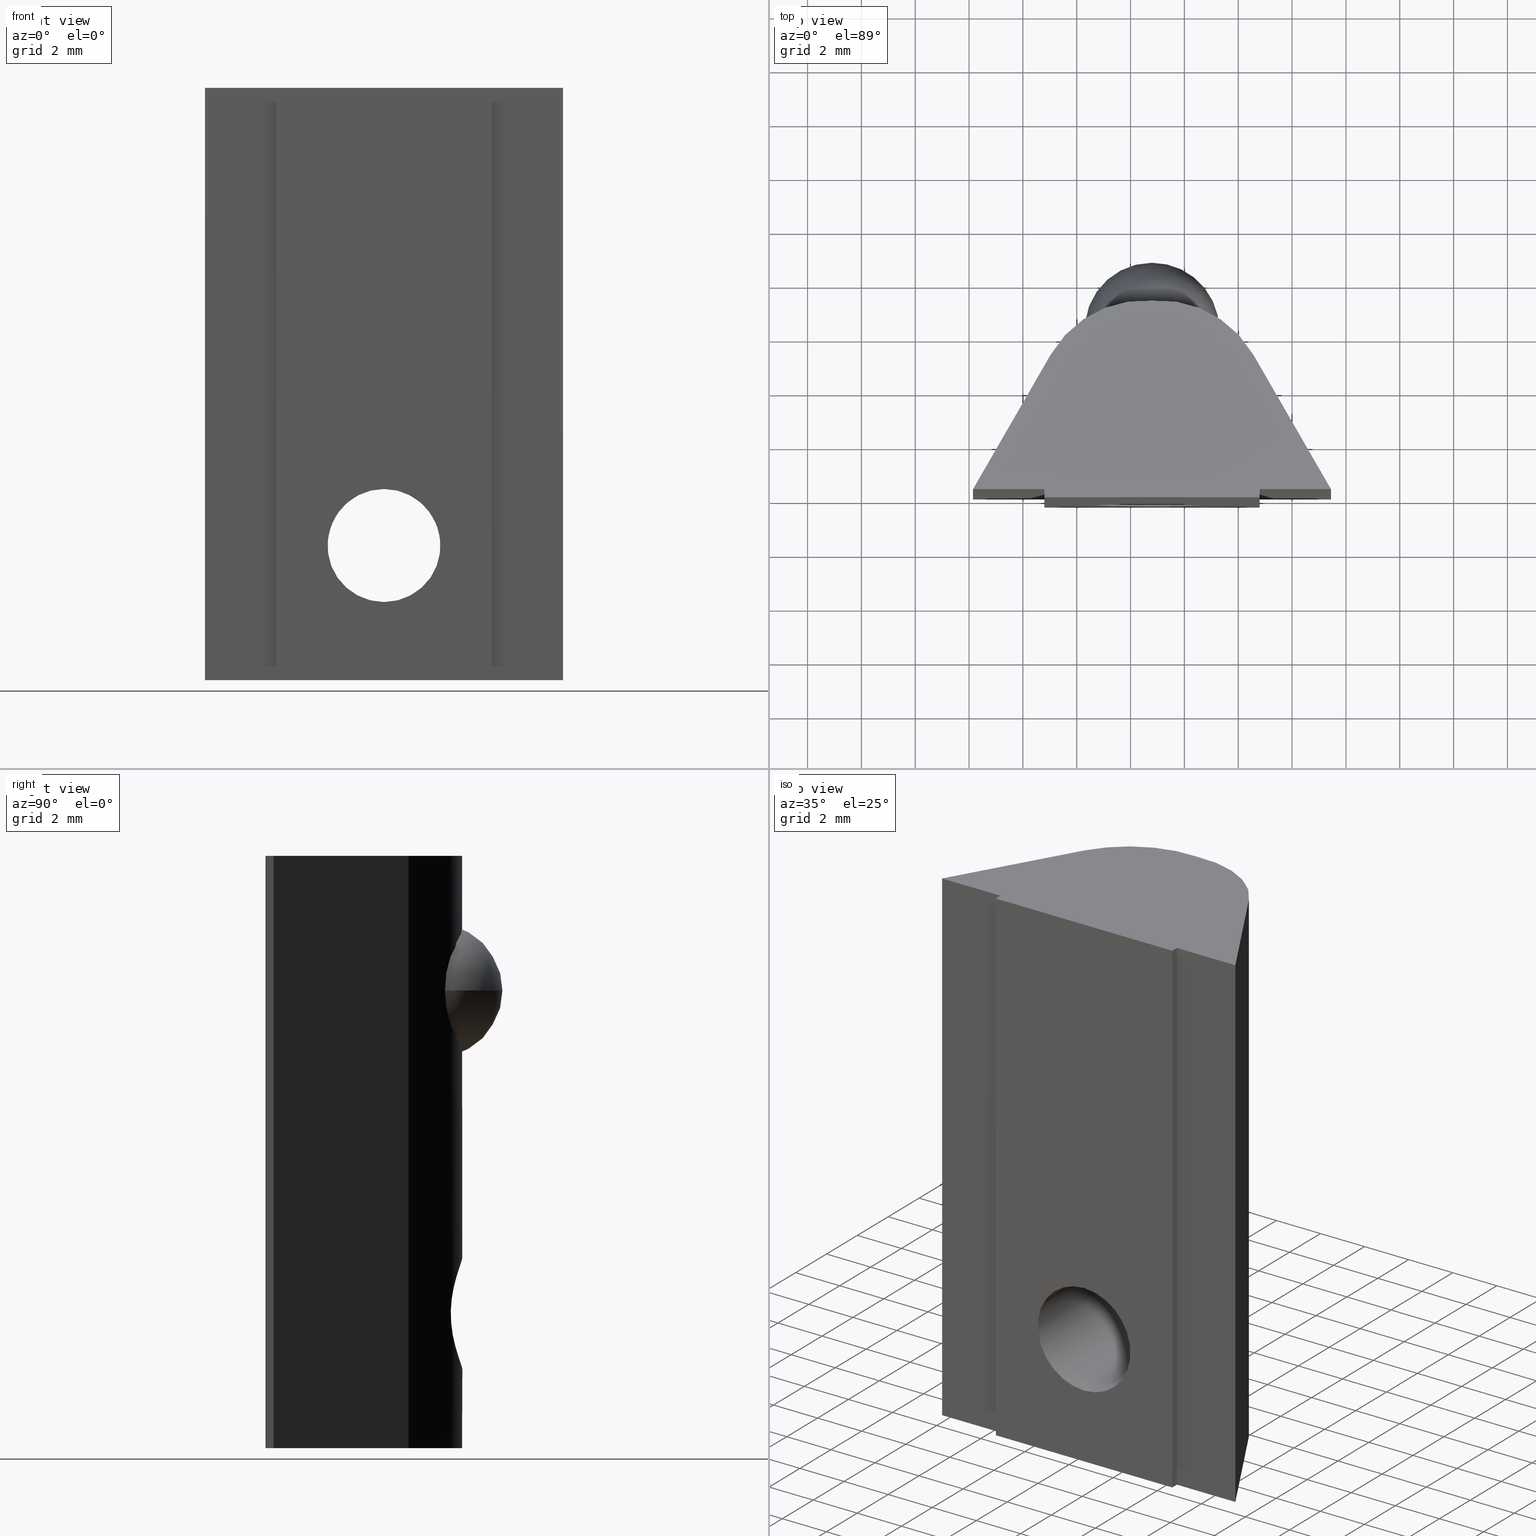
[diagram: canonical four-view strip — front | top / right | iso, engineering-drawing reading convention]
A machine part, canonical four-view strip (front | top / right | iso — engineering-drawing reading convention). The complete STEP part file that produces these views, byte-faithful:
ISO-10303-21;
HEADER;
FILE_DESCRIPTION (( 'STEP AP203' ),
    '1' );
FILE_NAME ('084.302.109.STEP',
    '2018-03-15T09:57:20',
    ( '' ),
    ( '' ),
    'SwSTEP 2.0',
    'SolidWorks 2016',
    '' );
FILE_SCHEMA (( 'CONFIG_CONTROL_DESIGN' ));
ENDSEC;

DATA;
#1 = CARTESIAN_POINT ( 'NONE',  ( 6.650000000000000400, 1.626303258728256700E-016, 0.0000000000000000000 ) ) ;
#2 = ORIENTED_EDGE ( 'NONE', *, *, #406, .T. ) ;
#3 = PERSON_AND_ORGANIZATION ( #574, #540 ) ;
#4 = ADVANCED_FACE ( 'NONE', ( #500 ), #443, .F. ) ;
#5 = CC_DESIGN_DATE_AND_TIME_ASSIGNMENT ( #243, #55, ( #731 ) ) ;
#6 = DIRECTION ( 'NONE',  ( 1.000000000000000000, 0.0000000000000000000, 0.0000000000000000000 ) ) ;
#7 = CC_DESIGN_PERSON_AND_ORGANIZATION_ASSIGNMENT ( #379, #595, ( #486 ) ) ;
#8 = PRODUCT_DEFINITION_SHAPE ( 'NONE', 'NONE',  #552 ) ;
#9 = ORIENTED_EDGE ( 'NONE', *, *, #513, .F. ) ;
#10 = EDGE_LOOP ( 'NONE', ( #658, #544, #724, #570 ) ) ;
#11 = CARTESIAN_POINT ( 'NONE',  ( 3.757047017994986900, 5.010741548740568000, -22.00000000000000000 ) ) ;
#12 = SHAPE_REPRESENTATION_RELATIONSHIP ( 'NONE' , 'NONE' ,  #632, #512 ) ;
#13 = CARTESIAN_POINT ( 'NONE',  ( 6.650000000000000400, 1.626303258728256700E-016, -22.00000000000000000 ) ) ;
#14 = DIRECTION ( 'NONE',  ( 0.8660254037844383700, 0.5000000000000006700, -0.0000000000000000000 ) ) ;
#15 = CARTESIAN_POINT ( 'NONE',  ( 0.0000000000000000000, 7.000000000000000000, -14.89999999999999900 ) ) ;
#16 = VERTEX_POINT ( 'NONE', #183 ) ;
#17 = APPROVAL ( #425, 'NON SPECIFICATO' ) ;
#18 = APPROVAL_PERSON_ORGANIZATION ( #230, #17, #727 ) ;
#19 = PLANE ( 'NONE',  #274 ) ;
#20 = CARTESIAN_POINT ( 'NONE',  ( -1.670093248805526700, 6.767075733069885000, -15.71965499976650800 ) ) ;
#21 = CARTESIAN_POINT ( 'NONE',  ( 0.0000000000000000000, 7.000000000000000000, 0.0000000000000000000 ) ) ;
#22 = CARTESIAN_POINT ( 'NONE',  ( 0.0000000000000000000, -0.2999999999999999300, -16.99999999999999600 ) ) ;
#23 = APPROVAL ( #782, 'NON SPECIFICATO' ) ;
#24 = ORIENTED_EDGE ( 'NONE', *, *, #494, .T. ) ;
#25 = CARTESIAN_POINT ( 'NONE',  ( -1.065268130170007300, 6.943736811957330200, -18.83037812681127600 ) ) ;
#26 = CARTESIAN_POINT ( 'NONE',  ( 0.2778427095453829300, 7.013015978677898900, -14.91386525814885100 ) ) ;
#27 = APPROVAL_PERSON_ORGANIZATION ( #210, #442, #660 ) ;
#28 = ORIENTED_EDGE ( 'NONE', *, *, #202, .T. ) ;
#29 = CARTESIAN_POINT ( 'NONE',  ( -2.100340295472199200, 6.579119870751840800, -17.27598671402250500 ) ) ;
#30 = PERSON_AND_ORGANIZATION ( #574, #540 ) ;
#31 = CARTESIAN_POINT ( 'NONE',  ( 1.065483002489959100, 6.943797238216981200, -15.16950234633369700 ) ) ;
#32 = PERSON_AND_ORGANIZATION ( #574, #540 ) ;
#33 = PERSON_AND_ORGANIZATION_ROLE ( 'design_owner' ) ;
#34 = ORIENTED_EDGE ( 'NONE', *, *, #608, .T. ) ;
#35 = DIRECTION ( 'NONE',  ( 0.0000000000000000000, 0.0000000000000000000, 1.000000000000000000 ) ) ;
#36 = DIRECTION ( 'NONE',  ( 0.0000000000000000000, 0.0000000000000000000, 1.000000000000000000 ) ) ;
#37 = CIRCLE ( 'NONE', #281, 2.099999999999997900 ) ;
#38 = APPROVAL_PERSON_ORGANIZATION ( #420, #502, #357 ) ;
#39 = CC_DESIGN_PERSON_AND_ORGANIZATION_ASSIGNMENT ( #381, #527, ( #765 ) ) ;
#40 = DIRECTION ( 'NONE',  ( 1.000000000000000000, 1.029617123758820600E-016, 0.0000000000000000000 ) ) ;
#41 = ORIENTED_EDGE ( 'NONE', *, *, #118, .F. ) ;
#42 = AXIS2_PLACEMENT_3D ( 'NONE', #22, #204, #224 ) ;
#43 = ORIENTED_EDGE ( 'NONE', *, *, #616, .F. ) ;
#44 = APPROVAL_ROLE ( '' ) ;
#45 = CC_DESIGN_SECURITY_CLASSIFICATION ( #731, ( #468 ) ) ;
#46 = CARTESIAN_POINT ( 'NONE',  ( -6.650000000000000400, 1.626303258728256700E-016, 0.0000000000000000000 ) ) ;
#47 = PERSON_AND_ORGANIZATION_ROLE ( 'classification_officer' ) ;
#48 = DATE_AND_TIME ( #195, #461 ) ;
#49 = LINE ( 'NONE', #799, #267 ) ;
#50 = APPROVAL ( #788, 'NON SPECIFICATO' ) ;
#51 = SECURITY_CLASSIFICATION_LEVEL ( 'unclassified' ) ;
#52 = ORIENTED_EDGE ( 'NONE', *, *, #163, .T. ) ;
#53 = APPROVAL_PERSON_ORGANIZATION ( #708, #23, #539 ) ;
#54 = CC_DESIGN_APPROVAL ( #536, ( #486 ) ) ;
#55 = DATE_TIME_ROLE ( 'classification_date' ) ;
#56 = EDGE_LOOP ( 'NONE', ( #98, #696, #521, #128, #242, #433 ) ) ;
#57 = EDGE_CURVE ( 'NONE', #597, #146, #70, .T. ) ;
#58 = ADVANCED_FACE ( 'NONE', ( #158 ), #68, .T. ) ;
#59 = CC_DESIGN_APPROVAL ( #50, ( #731 ) ) ;
#60 = ORIENTED_EDGE ( 'NONE', *, *, #518, .T. ) ;
#61 = ORIENTED_EDGE ( 'NONE', *, *, #406, .F. ) ;
#62 = APPROVAL ( #603, 'NON SPECIFICATO' ) ;
#63 = LINE ( 'NONE', #192, #589 ) ;
#64 = DATE_AND_TIME ( #253, #116 ) ;
#65 = ORIENTED_EDGE ( 'NONE', *, *, #489, .T. ) ;
#66 = DIRECTION ( 'NONE',  ( 0.0000000000000000000, 0.0000000000000000000, 1.000000000000000000 ) ) ;
#67 = AXIS2_PLACEMENT_3D ( 'NONE', #643, #268, #71 ) ;
#68 = PLANE ( 'NONE',  #178 ) ;
#69 = PRODUCT_RELATED_PRODUCT_CATEGORY ( 'detail', '', ( #792 ) ) ;
#70 = LINE ( 'NONE', #618, #167 ) ;
#71 = DIRECTION ( 'NONE',  ( 1.000000000000000000, 0.0000000000000000000, 0.0000000000000000000 ) ) ;
#72 = PRODUCT_DEFINITION_SHAPE ( 'NONE', 'NONE',  #811 ) ;
#73 = DIRECTION ( 'NONE',  ( 1.000000000000000000, 0.0000000000000000000, 0.0000000000000000000 ) ) ;
#74 = DIRECTION ( 'NONE',  ( 0.0000000000000000000, 0.0000000000000000000, 1.000000000000000000 ) ) ;
#75 = SECURITY_CLASSIFICATION ( '', '', #409 ) ;
#76 = DIRECTION ( 'NONE',  ( 0.0000000000000000000, 0.0000000000000000000, -1.000000000000000000 ) ) ;
#77 = LINE ( 'NONE', #188, #285 ) ;
#78 = AXIS2_PLACEMENT_3D ( 'NONE', #84, #462, #641 ) ;
#79 = CARTESIAN_POINT ( 'NONE',  ( -6.650000000000000400, 1.626303258728256700E-016, -22.00000000000000000 ) ) ;
#80 = DIRECTION ( 'NONE',  ( 1.000000000000000000, 0.0000000000000000000, 0.0000000000000000000 ) ) ;
#81 = CC_DESIGN_DATE_AND_TIME_ASSIGNMENT ( #383, #427, ( #132 ) ) ;
#82 = PERSON_AND_ORGANIZATION ( #574, #540 ) ;
#83 = DIRECTION ( 'NONE',  ( -1.000000000000000000, 0.0000000000000000000, 0.0000000000000000000 ) ) ;
#84 = CARTESIAN_POINT ( 'NONE',  ( 0.2929454028572334200, 3.010741548740566700, -22.00000000000000000 ) ) ;
#85 = CALENDAR_DATE ( 2018, 15, 3 ) ;
#86 = CARTESIAN_POINT ( 'NONE',  ( -0.6841240291442689500, 6.993631784759940300, -15.00978186247948900 ) ) ;
#87 = CC_DESIGN_PERSON_AND_ORGANIZATION_ASSIGNMENT ( #420, #665, ( #602 ) ) ;
#88 = ORIENTED_EDGE ( 'NONE', *, *, #57, .F. ) ;
#89 = CARTESIAN_POINT ( 'NONE',  ( -5.204035208279566200, 0.1420194118098121200, 16.33826636980840900 ) ) ;
#90 = VECTOR ( 'NONE', #314, 1000.000000000000000 ) ;
#91 = LOCAL_TIME ( 10, 57, 20.00000000000000000, #591 ) ;
#92 = LINE ( 'NONE', #13, #384 ) ;
#93 = AXIS2_PLACEMENT_3D ( 'NONE', #331, #723, #533 ) ;
#94 = APPLICATION_CONTEXT ( 'configuration controlled 3d designs of mechanical parts and assemblies' ) ;
#95 = MANIFOLD_SOLID_BREP ( 'Foro filettato M5-2', #223 ) ;
#96 = EDGE_CURVE ( 'NONE', #146, #407, #698, .T. ) ;
#97 = VERTEX_POINT ( 'NONE', #318 ) ;
#98 = ORIENTED_EDGE ( 'NONE', *, *, #96, .F. ) ;
#99 = FACE_OUTER_BOUND ( 'NONE', #745, .T. ) ;
#100 = DIRECTION ( 'NONE',  ( 1.029617123758820600E-016, -1.000000000000000000, 0.0000000000000000000 ) ) ;
#101 = PERSON_AND_ORGANIZATION ( #574, #540 ) ;
#102 = APPROVAL_PERSON_ORGANIZATION ( #233, #536, #670 ) ;
#103 = DATE_TIME_ROLE ( 'classification_date' ) ;
#104 = DIRECTION ( 'NONE',  ( -0.0000000000000000000, 1.000000000000000000, -0.0000000000000000000 ) ) ;
#105 = SECURITY_CLASSIFICATION_LEVEL ( 'unclassified' ) ;
#106 = AXIS2_PLACEMENT_3D ( 'NONE', #453, #191, #83 ) ;
#107 = VERTEX_POINT ( 'NONE', #255 ) ;
#108 = VECTOR ( 'NONE', #576, 1000.000000000000000 ) ;
#109 = DATE_TIME_ROLE ( 'classification_date' ) ;
#110 = ORGANIZATION ( 'NAUO-ORG1', 'UNSPECIFIED', 'UNSPECIFIED' ) ;
#111 = ORIENTED_EDGE ( 'NONE', *, *, #463, .F. ) ;
#112 = PRODUCT_DEFINITION_SHAPE ( 'NONE', 'NONE',  #701 ) ;
#113 = EDGE_LOOP ( 'NONE', ( #505, #583, #358, #186 ) ) ;
#114 = APPROVAL ( #171, 'NON SPECIFICATO' ) ;
#115 = VECTOR ( 'NONE', #547, 1000.000000000000000 ) ;
#116 = LOCAL_TIME ( 10, 57, 20.00000000000000000, #531 ) ;
#117 = DATE_AND_TIME ( #510, #400 ) ;
#118 = EDGE_CURVE ( 'NONE', #16, #407, #430, .T. ) ;
#119 = COORDINATED_UNIVERSAL_TIME_OFFSET ( 1, 0, .AHEAD. ) ;
#120 = CC_DESIGN_PERSON_AND_ORGANIZATION_ASSIGNMENT ( #697, #421, ( #468 ) ) ;
#121 = ADVANCED_FACE ( 'NONE', ( #719 ), #378, .F. ) ;
#122 = EDGE_LOOP ( 'NONE', ( #411, #307, #473, #756, #165, #630, #652, #222, #28 ) ) ;
#123 = CARTESIAN_POINT ( 'NONE',  ( 6.650000000000000400, 1.626303258728256700E-016, -22.00000000000000000 ) ) ;
#124 = SHAPE_DEFINITION_REPRESENTATION ( #112, #620 ) ;
#125 = DIRECTION ( 'NONE',  ( -1.000000000000000000, 1.029617123758820600E-016, 0.0000000000000000000 ) ) ;
#126 = DIRECTION ( 'NONE',  ( 0.0000000000000000000, 0.0000000000000000000, 1.000000000000000000 ) ) ;
#127 = DIRECTION ( 'NONE',  ( 0.5000000000000006700, 0.8660254037844382600, 0.0000000000000000000 ) ) ;
#128 = ORIENTED_EDGE ( 'NONE', *, *, #202, .F. ) ;
#129 = EDGE_CURVE ( 'NONE', #610, #562, #92, .T. ) ;
#130 = CARTESIAN_POINT ( 'NONE',  ( 4.000000000000000000, -0.3000000000000002100, -22.00000000000000000 ) ) ;
#131 = VECTOR ( 'NONE', #517, 1000.000000000000000 ) ;
#132 = SECURITY_CLASSIFICATION ( '', '', #51 ) ;
#133 = PERSON_AND_ORGANIZATION ( #574, #540 ) ;
#134 = CARTESIAN_POINT ( 'NONE',  ( -2.168404344971008900E-016, 7.000000000000000000, -19.09999999999999400 ) ) ;
#135 = CARTESIAN_POINT ( 'NONE',  ( -6.650000000000000400, 1.626303258728256700E-016, -22.00000000000000000 ) ) ;
#136 = CARTESIAN_POINT ( 'NONE',  ( 4.000000000000000000, -1.102182119232618300E-016, 0.0000000000000000000 ) ) ;
#137 = CC_DESIGN_APPROVAL ( #62, ( #321 ) ) ;
#138 = CARTESIAN_POINT ( 'NONE',  ( 0.5492240288136818200, 7.004830928030088400, -14.96837313992467100 ) ) ;
#139 = ORIENTED_EDGE ( 'NONE', *, *, #566, .T. ) ;
#140 = CARTESIAN_POINT ( 'NONE',  ( 4.000000000000000000, -1.102182119232618300E-016, -22.00000000000000000 ) ) ;
#141 = LOCAL_TIME ( 10, 57, 20.00000000000000000, #308 ) ;
#142 = FACE_OUTER_BOUND ( 'NONE', #445, .T. ) ;
#143 = CARTESIAN_POINT ( 'NONE',  ( -1.670459469328647400, 6.766941291681751700, -18.27987192857328900 ) ) ;
#144 = CARTESIAN_POINT ( 'NONE',  ( 1.670093248805526200, 6.767075733069882300, -15.71965499976650400 ) ) ;
#145 = COORDINATED_UNIVERSAL_TIME_OFFSET ( 1, 0, .AHEAD. ) ;
#146 = VERTEX_POINT ( 'NONE', #744 ) ;
#147 = DIRECTION ( 'NONE',  ( 0.0000000000000000000, 0.0000000000000000000, 1.000000000000000000 ) ) ;
#148 = LOCAL_TIME ( 10, 57, 20.00000000000000000, #119 ) ;
#149 = PERSON_AND_ORGANIZATION_ROLE ( 'creator' ) ;
#150 = VERTEX_POINT ( 'NONE', #366 ) ;
#151 =( NAMED_UNIT ( * ) SI_UNIT ( $, .STERADIAN. ) SOLID_ANGLE_UNIT ( ) );
#152 = CARTESIAN_POINT ( 'NONE',  ( 2.085941216390682800, 6.586504634481535400, -16.72104059423844900 ) ) ;
#153 = CYLINDRICAL_SURFACE ( 'NONE', #78, 4.000000000000000000 ) ;
#154 = EDGE_CURVE ( 'NONE', #491, #538, #532, .T. ) ;
#155 = CARTESIAN_POINT ( 'NONE',  ( 0.0000000000000000000, 7.000000000000000000, -14.89999999999999900 ) ) ;
#156 = FACE_OUTER_BOUND ( 'NONE', #349, .T. ) ;
#157 = APPROVAL_DATE_TIME ( #439, #17 ) ;
#158 = FACE_OUTER_BOUND ( 'NONE', #113, .T. ) ;
#159 = CC_DESIGN_SECURITY_CLASSIFICATION ( #75, ( #765 ) ) ;
#160 = DIRECTION ( 'NONE',  ( 1.000000000000000000, 0.0000000000000000000, 0.0000000000000000000 ) ) ;
#161 = CARTESIAN_POINT ( 'NONE',  ( -6.650000000000000400, 1.626303258728256700E-016, -22.00000000000000000 ) ) ;
#162 = DIRECTION ( 'NONE',  ( 1.000000000000000000, 0.0000000000000000000, 0.0000000000000000000 ) ) ;
#163 = EDGE_CURVE ( 'NONE', #490, #678, #509, .T. ) ;
#164 = APPROVAL_STATUS ( 'not_yet_approved' ) ;
#165 = ORIENTED_EDGE ( 'NONE', *, *, #235, .F. ) ;
#166 = CIRCLE ( 'NONE', #261, 2.500000000000000000 ) ;
#167 = VECTOR ( 'NONE', #248, 1000.000000000000000 ) ;
#168 = APPROVAL_PERSON_ORGANIZATION ( #32, #114, #549 ) ;
#169 = DATE_TIME_ROLE ( 'creation_date' ) ;
#170 = ORIENTED_EDGE ( 'NONE', *, *, #304, .F. ) ;
#171 = APPROVAL_STATUS ( 'not_yet_approved' ) ;
#172 = ORIENTED_EDGE ( 'NONE', *, *, #578, .F. ) ;
#173 = ADVANCED_FACE ( 'NONE', ( #777 ), #176, .T. ) ;
#174 = FACE_BOUND ( 'NONE', #313, .T. ) ;
#175 = DATE_AND_TIME ( #207, #266 ) ;
#176 = CYLINDRICAL_SURFACE ( 'NONE', #220, 4.000000000000000000 ) ;
#177 = CALENDAR_DATE ( 2018, 15, 3 ) ;
#178 = AXIS2_PLACEMENT_3D ( 'NONE', #760, #762, #768 ) ;
#179 = DIRECTION ( 'NONE',  ( 1.000000000000000000, 0.0000000000000000000, 0.0000000000000000000 ) ) ;
#180 = PERSON_AND_ORGANIZATION ( #574, #540 ) ;
#181 = EDGE_CURVE ( 'NONE', #97, #382, #218, .T. ) ;
#182 = VERTEX_POINT ( 'NONE', #294 ) ;
#183 = CARTESIAN_POINT ( 'NONE',  ( 3.757047017994986900, 5.010741548740568000, 0.0000000000000000000 ) ) ;
#184 = CARTESIAN_POINT ( 'NONE',  ( -2.168404344971008900E-016, 7.000000000000000000, -19.09999999999999400 ) ) ;
#185 = DIRECTION ( 'NONE',  ( 0.0000000000000000000, 0.0000000000000000000, 1.000000000000000000 ) ) ;
#186 = ORIENTED_EDGE ( 'NONE', *, *, #754, .T. ) ;
#187 = DIRECTION ( 'NONE',  ( -0.0000000000000000000, 1.000000000000000000, -0.0000000000000000000 ) ) ;
#188 = CARTESIAN_POINT ( 'NONE',  ( -6.650000000000000400, 1.626303258728256700E-016, 0.0000000000000000000 ) ) ;
#189 = CC_DESIGN_PERSON_AND_ORGANIZATION_ASSIGNMENT ( #459, #297, ( #468 ) ) ;
#190 = UNCERTAINTY_MEASURE_WITH_UNIT (LENGTH_MEASURE( 1.000000000000000100E-005 ), #535, 'distance_accuracy_value', 'NONE');
#191 = DIRECTION ( 'NONE',  ( -0.0000000000000000000, -0.0000000000000000000, -1.000000000000000000 ) ) ;
#192 = CARTESIAN_POINT ( 'NONE',  ( 6.650000000000000400, 1.626303258728256700E-016, 0.0000000000000000000 ) ) ;
#193 = APPROVAL_PERSON_ORGANIZATION ( #410, #773, #739 ) ;
#194 = VECTOR ( 'NONE', #735, 1000.000000000000000 ) ;
#195 = CALENDAR_DATE ( 2018, 15, 3 ) ;
#196 = CARTESIAN_POINT ( 'NONE',  ( -3.757047017994986900, 5.010741548740568000, -22.00000000000000000 ) ) ;
#197 = CARTESIAN_POINT ( 'NONE',  ( -1.297061383087251500, 6.887819709980458800, -18.67354579114834600 ) ) ;
#198 = APPROVAL ( #164, 'NON SPECIFICATO' ) ;
#199 = DIRECTION ( 'NONE',  ( 1.000000000000000000, 0.0000000000000000000, -0.0000000000000000000 ) ) ;
#200 = VERTEX_POINT ( 'NONE', #607 ) ;
#201 = LOCAL_TIME ( 10, 57, 20.00000000000000000, #371 ) ;
#202 = EDGE_CURVE ( 'NONE', #538, #240, #316, .T. ) ;
#203 = CARTESIAN_POINT ( 'NONE',  ( 2.571758278209441500E-016, -0.2999999999999999300, -19.09999999999999400 ) ) ;
#204 = DIRECTION ( 'NONE',  ( -0.0000000000000000000, 1.000000000000000000, -0.0000000000000000000 ) ) ;
#205 = LINE ( 'NONE', #770, #541 ) ;
#206 = CARTESIAN_POINT ( 'NONE',  ( 0.6841240291442684000, 6.993631784759942100, -15.00978186247948700 ) ) ;
#207 = CALENDAR_DATE ( 2018, 15, 3 ) ;
#208 = FACE_OUTER_BOUND ( 'NONE', #803, .T. ) ;
#209 = LOCAL_TIME ( 10, 57, 20.00000000000000000, #310 ) ;
#210 = PERSON_AND_ORGANIZATION ( #574, #540 ) ;
#211 = CARTESIAN_POINT ( 'NONE',  ( -0.2778427095453834300, 7.013015978677898900, -14.91386525814885100 ) ) ;
#212 = LOCAL_TIME ( 10, 57, 20.00000000000000000, #330 ) ;
#213 = CARTESIAN_POINT ( 'NONE',  ( -2.168404344971008900E-016, 7.000000000000000000, -19.09999999999999400 ) ) ;
#214 = CARTESIAN_POINT ( 'NONE',  ( 1.821280718181895700, 6.708142508589593200, -15.94575556681216500 ) ) ;
#215 = VERTEX_POINT ( 'NONE', #677 ) ;
#216 = SHAPE_REPRESENTATION_RELATIONSHIP ( 'NONE' , 'NONE' ,  #620, #807 ) ;
#217 = PLANE ( 'NONE',  #683 ) ;
#218 = LINE ( 'NONE', #361, #340 ) ;
#219 = APPLICATION_CONTEXT ( 'configuration controlled 3d designs of mechanical parts and assemblies' ) ;
#220 = AXIS2_PLACEMENT_3D ( 'NONE', #600, #804, #179 ) ;
#221 =( NAMED_UNIT ( * ) PLANE_ANGLE_UNIT ( ) SI_UNIT ( $, .RADIAN. ) );
#222 = ORIENTED_EDGE ( 'NONE', *, *, #154, .T. ) ;
#223 = CLOSED_SHELL ( 'NONE', ( #802, #694, #436, #582, #58, #498, #746, #621, #173, #4, #614, #441, #121 ) ) ;
#224 = DIRECTION ( 'NONE',  ( 0.0000000000000000000, 0.0000000000000000000, 1.000000000000000000 ) ) ;
#225 = CARTESIAN_POINT ( 'NONE',  ( 1.670459469328647400, 6.766941291681750800, -18.27987192857328900 ) ) ;
#226 = SPHERICAL_SURFACE ( 'NONE', #686, 2.500000000000000000 ) ;
#227 = FACE_OUTER_BOUND ( 'NONE', #393, .T. ) ;
#228 = COORDINATED_UNIVERSAL_TIME_OFFSET ( 1, 0, .AHEAD. ) ;
#229 = PERSON_AND_ORGANIZATION_ROLE ( 'classification_officer' ) ;
#230 = PERSON_AND_ORGANIZATION ( #574, #540 ) ;
#231 = ORIENTED_EDGE ( 'NONE', *, *, #424, .F. ) ;
#232 = COORDINATED_UNIVERSAL_TIME_OFFSET ( 1, 0, .AHEAD. ) ;
#233 = PERSON_AND_ORGANIZATION ( #574, #540 ) ;
#234 = APPROVAL_STATUS ( 'not_yet_approved' ) ;
#235 = EDGE_CURVE ( 'NONE', #150, #329, #49, .T. ) ;
#236 = APPROVAL_ROLE ( '' ) ;
#237 = DATE_TIME_ROLE ( 'creation_date' ) ;
#238 = AXIS2_PLACEMENT_3D ( 'NONE', #259, #14, #702 ) ;
#239 = CONTEXT_DEPENDENT_SHAPE_REPRESENTATION ( #292, #72 ) ;
#240 = VERTEX_POINT ( 'NONE', #506 ) ;
#241 = DIRECTION ( 'NONE',  ( 1.000000000000000000, -0.0000000000000000000, -0.0000000000000000000 ) ) ;
#242 = ORIENTED_EDGE ( 'NONE', *, *, #476, .T. ) ;
#243 = DATE_AND_TIME ( #808, #354 ) ;
#244 = ADVANCED_FACE ( 'NONE', ( #710 ), #543, .T. ) ;
#245 = COORDINATED_UNIVERSAL_TIME_OFFSET ( 1, 0, .AHEAD. ) ;
#246 = EDGE_CURVE ( 'NONE', #327, #407, #376, .T. ) ;
#247 = CARTESIAN_POINT ( 'NONE',  ( -4.000000000000000000, -1.102182119232618300E-016, -22.00000000000000000 ) ) ;
#248 = DIRECTION ( 'NONE',  ( -0.0000000000000000000, 1.000000000000000000, -0.0000000000000000000 ) ) ;
#249 = ORIENTED_EDGE ( 'NONE', *, *, #713, .F. ) ;
#250 = CARTESIAN_POINT ( 'NONE',  ( 0.1401207566892639100, 7.010289564343477900, -19.09999999999999400 ) ) ;
#251 = VECTOR ( 'NONE', #328, 1000.000000000000000 ) ;
#252 = VECTOR ( 'NONE', #262, 1000.000000000000000 ) ;
#253 = CALENDAR_DATE ( 2018, 15, 3 ) ;
#254 = EDGE_LOOP ( 'NONE', ( #139, #416, #312, #688 ) ) ;
#255 = CARTESIAN_POINT ( 'NONE',  ( 4.000000000000000000, -1.102182119232618300E-016, -22.00000000000000000 ) ) ;
#256 = CARTESIAN_POINT ( 'NONE',  ( 0.6862748488494189200, 6.993394619347876400, -18.98942124772582200 ) ) ;
#257 = DIRECTION ( 'NONE',  ( -0.5000000000000006700, 0.8660254037844382600, 0.0000000000000000000 ) ) ;
#258 = AXIS2_PLACEMENT_3D ( 'NONE', #269, #584, #147 ) ;
#259 = CARTESIAN_POINT ( 'NONE',  ( 6.650000000000000400, 1.626303258728256700E-016, -22.00000000000000000 ) ) ;
#260 = ORIENTED_EDGE ( 'NONE', *, *, #96, .T. ) ;
#261 = AXIS2_PLACEMENT_3D ( 'NONE', #450, #763, #319 ) ;
#262 = DIRECTION ( 'NONE',  ( 0.0000000000000000000, 0.0000000000000000000, 1.000000000000000000 ) ) ;
#263 = ORIENTED_EDGE ( 'NONE', *, *, #699, .T. ) ;
#264 = DIRECTION ( 'NONE',  ( 0.5000000000000005600, 0.8660254037844382600, 0.0000000000000000000 ) ) ;
#265 = CARTESIAN_POINT ( 'NONE',  ( -2.099827479962586000, 6.579379551697454300, -16.85814070291563700 ) ) ;
#266 = LOCAL_TIME ( 10, 57, 20.00000000000000000, #339 ) ;
#267 = VECTOR ( 'NONE', #241, 1000.000000000000000 ) ;
#268 = DIRECTION ( 'NONE',  ( 0.0000000000000000000, 0.0000000000000000000, 1.000000000000000000 ) ) ;
#269 = CARTESIAN_POINT ( 'NONE',  ( 0.0000000000000000000, 7.099999999999999600, -16.99999999999999600 ) ) ;
#270 = AXIS2_PLACEMENT_3D ( 'NONE', #344, #36, #160 ) ;
#271 = CARTESIAN_POINT ( 'NONE',  ( 1.296584994652632700, 6.887950795788006200, -15.32606086254450700 ) ) ;
#272 = CARTESIAN_POINT ( 'NONE',  ( -2.085941216390682800, 6.586504634481536300, -16.72104059423844900 ) ) ;
#273 = ORIENTED_EDGE ( 'NONE', *, *, #118, .T. ) ;
#274 = AXIS2_PLACEMENT_3D ( 'NONE', #457, #761, #264 ) ;
#275 = CARTESIAN_POINT ( 'NONE',  ( 3.757047017994986900, 5.010741548740568000, -22.00000000000000000 ) ) ;
#276 = FACE_OUTER_BOUND ( 'NONE', #743, .T. ) ;
#277 = LINE ( 'NONE', #79, #108 ) ;
#278 = APPROVAL_PERSON_ORGANIZATION ( #133, #345, #675 ) ;
#279 = ORIENTED_EDGE ( 'NONE', *, *, #794, .F. ) ;
#280 =( LENGTH_UNIT ( ) NAMED_UNIT ( * ) SI_UNIT ( .MILLI., .METRE. ) );
#281 = AXIS2_PLACEMENT_3D ( 'NONE', #296, #104, #289 ) ;
#282 = CARTESIAN_POINT ( 'NONE',  ( 4.000000000000000000, -1.102182119232618300E-016, 0.0000000000000000000 ) ) ;
#283 = APPLICATION_CONTEXT ( 'configuration controlled 3d designs of mechanical parts and assemblies' ) ;
#284 = CC_DESIGN_PERSON_AND_ORGANIZATION_ASSIGNMENT ( #82, #426, ( #778 ) ) ;
#285 = VECTOR ( 'NONE', #127, 1000.000000000000100 ) ;
#286 = DIRECTION ( 'NONE',  ( 0.5000000000000006700, 0.8660254037844382600, 0.0000000000000000000 ) ) ;
#287 = PERSON_AND_ORGANIZATION ( #574, #540 ) ;
#288 = APPROVAL_DATE_TIME ( #48, #345 ) ;
#289 = DIRECTION ( 'NONE',  ( 0.0000000000000000000, 0.0000000000000000000, 1.000000000000000000 ) ) ;
#290 = DATE_TIME_ROLE ( 'classification_date' ) ;
#291 = AXIS2_PLACEMENT_3D ( 'NONE', #395, #700, #705 ) ;
#292 =( REPRESENTATION_RELATIONSHIP ('NONE','NONE', #624, #632 ) REPRESENTATION_RELATIONSHIP_WITH_TRANSFORMATION ( #508 )SHAPE_REPRESENTATION_RELATIONSHIP( ) );
#293 = PERSON_AND_ORGANIZATION_ROLE ( 'design_supplier' ) ;
#294 = CARTESIAN_POINT ( 'NONE',  ( -4.000000000000000000, -1.102182119232618300E-016, 0.0000000000000000000 ) ) ;
#295 = VECTOR ( 'NONE', #187, 1000.000000000000000 ) ;
#296 = CARTESIAN_POINT ( 'NONE',  ( 0.0000000000000000000, -0.2999999999999999300, -16.99999999999999600 ) ) ;
#297 = PERSON_AND_ORGANIZATION_ROLE ( 'creator' ) ;
#298 = APPROVAL_DATE_TIME ( #484, #62 ) ;
#299 = VECTOR ( 'NONE', #185, 1000.000000000000000 ) ;
#300 = APPROVAL_PERSON_ORGANIZATION ( #30, #198, #798 ) ;
#301 = PERSON_AND_ORGANIZATION_ROLE ( 'design_owner' ) ;
#302 = AXIS2_PLACEMENT_3D ( 'NONE', #89, #651, #413 ) ;
#303 = ORIENTED_EDGE ( 'NONE', *, *, #435, .T. ) ;
#304 = EDGE_CURVE ( 'NONE', #491, #215, #483, .T. ) ;
#305 = CARTESIAN_POINT ( 'NONE',  ( 0.2929454028572334200, 3.010741548740566700, -22.00000000000000000 ) ) ;
#306 = CC_DESIGN_PERSON_AND_ORGANIZATION_ASSIGNMENT ( #394, #33, ( #685 ) ) ;
#307 = ORIENTED_EDGE ( 'NONE', *, *, #129, .F. ) ;
#308 = COORDINATED_UNIVERSAL_TIME_OFFSET ( 1, 0, .AHEAD. ) ;
#309 = DIRECTION ( 'NONE',  ( 1.000000000000000000, 0.0000000000000000000, 0.0000000000000000000 ) ) ;
#310 = COORDINATED_UNIVERSAL_TIME_OFFSET ( 1, 0, .AHEAD. ) ;
#311 = CARTESIAN_POINT ( 'NONE',  ( -4.000000000000000000, -0.3000000000000002100, -22.00000000000000000 ) ) ;
#312 = ORIENTED_EDGE ( 'NONE', *, *, #154, .F. ) ;
#313 = EDGE_LOOP ( 'NONE', ( #676, #65 ) ) ;
#314 = DIRECTION ( 'NONE',  ( 0.0000000000000000000, 0.0000000000000000000, 1.000000000000000000 ) ) ;
#315 = CARTESIAN_POINT ( 'NONE',  ( -0.1401207566892644400, 7.010289564343477900, -19.09999999999999800 ) ) ;
#316 = CIRCLE ( 'NONE', #106, 4.000000000000000000 ) ;
#317 = PERSON_AND_ORGANIZATION ( #574, #540 ) ;
#318 = CARTESIAN_POINT ( 'NONE',  ( -4.000000000000000000, -0.3000000000000002100, 0.0000000000000000000 ) ) ;
#319 = DIRECTION ( 'NONE',  ( -1.000000000000000000, 0.0000000000000000000, -1.224646799147353200E-016 ) ) ;
#320 = CARTESIAN_POINT ( 'NONE',  ( 0.0000000000000000000, 0.0000000000000000000, 0.0000000000000000000 ) ) ;
#321 = SECURITY_CLASSIFICATION ( '', '', #674 ) ;
#322 = CALENDAR_DATE ( 2018, 15, 3 ) ;
#323 = CARTESIAN_POINT ( 'NONE',  ( 4.000000000000000000, -0.3000000000000002100, 0.0000000000000000000 ) ) ;
#324 = CARTESIAN_POINT ( 'NONE',  ( -0.6862748488494195800, 6.993394619347875500, -18.98942124772581900 ) ) ;
#325 = AXIS2_PLACEMENT_3D ( 'NONE', #691, #626, #199 ) ;
#326 = DIRECTION ( 'NONE',  ( 0.0000000000000000000, 0.0000000000000000000, 1.000000000000000000 ) ) ;
#327 = VERTEX_POINT ( 'NONE', #571 ) ;
#328 = DIRECTION ( 'NONE',  ( 0.0000000000000000000, 0.0000000000000000000, 1.000000000000000000 ) ) ;
#329 = VERTEX_POINT ( 'NONE', #130 ) ;
#330 = COORDINATED_UNIVERSAL_TIME_OFFSET ( 1, 0, .AHEAD. ) ;
#331 = CARTESIAN_POINT ( 'NONE',  ( 0.0000000000000000000, 0.0000000000000000000, 0.0000000000000000000 ) ) ;
#332 = PERSON_AND_ORGANIZATION_ROLE ( 'creator' ) ;
#333 = ORIENTED_EDGE ( 'NONE', *, *, #435, .F. ) ;
#334 = AXIS2_PLACEMENT_3D ( 'NONE', #341, #469, #162 ) ;
#335 = DIRECTION ( 'NONE',  ( 1.000000000000000000, 0.0000000000000000000, 0.0000000000000000000 ) ) ;
#336 = MANIFOLD_SOLID_BREP ( 'Rivoluzione1', #370 ) ;
#337 = CARTESIAN_POINT ( 'NONE',  ( 1.297061383087251900, 6.887819709980458800, -18.67354579114834600 ) ) ;
#338 = LINE ( 'NONE', #726, #115 ) ;
#339 = COORDINATED_UNIVERSAL_TIME_OFFSET ( 1, 0, .AHEAD. ) ;
#340 = VECTOR ( 'NONE', #605, 1000.000000000000000 ) ;
#341 = CARTESIAN_POINT ( 'NONE',  ( 0.0000000000000000000, 0.0000000000000000000, 0.0000000000000000000 ) ) ;
#342 = APPROVAL_PERSON_ORGANIZATION ( #638, #62, #236 ) ;
#343 = DIRECTION ( 'NONE',  ( 0.0000000000000000000, 0.0000000000000000000, 1.000000000000000000 ) ) ;
#344 = CARTESIAN_POINT ( 'NONE',  ( -5.204035208279566200, 6.142019411809812400, 11.33826636980840900 ) ) ;
#345 = APPROVAL ( #606, 'NON SPECIFICATO' ) ;
#346 = CARTESIAN_POINT ( 'NONE',  ( 2.044340105706192700, 6.608803008618787400, -17.55335733217450000 ) ) ;
#347 = APPROVAL_DATE_TIME ( #666, #442 ) ;
#348 = SECURITY_CLASSIFICATION_LEVEL ( 'unclassified' ) ;
#349 = EDGE_LOOP ( 'NONE', ( #60, #170, #111, #432 ) ) ;
#350 = PERSON ( 'NAUO-PER2', 'UNSPECIFIED', 'UNSPECIFIED', ('UNSPECIFIED'), ('UNSPECIFIED'), ('UNSPECIFIED') ) ;
#351 = APPROVAL_DATE_TIME ( #734, #23 ) ;
#352 = CC_DESIGN_PERSON_AND_ORGANIZATION_ASSIGNMENT ( #3, #332, ( #552 ) ) ;
#353 = PERSON_AND_ORGANIZATION_ROLE ( 'classification_officer' ) ;
#354 = LOCAL_TIME ( 10, 57, 20.00000000000000000, #228 ) ;
#355 = APPLICATION_CONTEXT ( 'configuration controlled 3d designs of mechanical parts and assemblies' ) ;
#356 = AXIS2_PLACEMENT_3D ( 'NONE', #305, #66, #309 ) ;
#357 = APPROVAL_ROLE ( '' ) ;
#358 = ORIENTED_EDGE ( 'NONE', *, *, #440, .T. ) ;
#359 = APPLICATION_PROTOCOL_DEFINITION ( 'international standard', 'config_control_design', 1994, #355 ) ;
#360 = DESIGN_CONTEXT ( 'detailed design', #479, 'design' ) ;
#361 = CARTESIAN_POINT ( 'NONE',  ( 4.000000000000000000, -0.3000000000000002100, 0.0000000000000000000 ) ) ;
#362 = LINE ( 'NONE', #275, #563 ) ;
#363 = COORDINATED_UNIVERSAL_TIME_OFFSET ( 1, 0, .AHEAD. ) ;
#364 = VECTOR ( 'NONE', #286, 1000.000000000000100 ) ;
#365 = CARTESIAN_POINT ( 'NONE',  ( -4.000000000000000000, -1.102182119232618300E-016, -22.00000000000000000 ) ) ;
#366 = CARTESIAN_POINT ( 'NONE',  ( -4.000000000000000000, -0.3000000000000002100, -22.00000000000000000 ) ) ;
#367 = B_SPLINE_CURVE_WITH_KNOTS ( 'NONE', 3,
 ( #155, #609, #26, #138, #206, #31, #271, #525, #144, #214, #588, #783, #730, #152, #528, #661, #346, #722, #415, #225, #721, #337, #779, #256, #592, #501, #250, #184 ),
 .UNSPECIFIED., .F., .F.,
 ( 4, 2, 2, 2, 2, 2, 2, 2, 2, 2, 2, 2, 2, 4 ),
 ( 2.117074005974005400E-019, 0.0004148728083314227900, 0.0008297456166628452500, 0.001659491233325687900, 0.002074364041657113100, 0.002489236849988537600, 0.002904109658319962500, 0.003318982466651387500, 0.004148728083314227900, 0.004563600891645647200, 0.004978473699977068200, 0.005808219316639900800, 0.006223092124971314900, 0.006637964933302729000 ),
 .UNSPECIFIED. ) ;
#368 = CC_DESIGN_APPROVAL ( #198, ( #778 ) ) ;
#369 = VERTEX_POINT ( 'NONE', #568 ) ;
#370 = CLOSED_SHELL ( 'NONE', ( #244, #755 ) ) ;
#371 = COORDINATED_UNIVERSAL_TIME_OFFSET ( 1, 0, .AHEAD. ) ;
#372 = LINE ( 'NONE', #282, #550 ) ;
#373 = CARTESIAN_POINT ( 'NONE',  ( -6.650000000000000400, 1.626303258728256700E-016, -22.00000000000000000 ) ) ;
#374 =( GEOMETRIC_REPRESENTATION_CONTEXT ( 3 ) GLOBAL_UNCERTAINTY_ASSIGNED_CONTEXT ( ( #190 ) ) GLOBAL_UNIT_ASSIGNED_CONTEXT ( ( #535, #720, #472 ) ) REPRESENTATION_CONTEXT ( 'NONE', 'WORKASPACE' ) );
#375 = DATE_AND_TIME ( #438, #91 ) ;
#376 = CIRCLE ( 'NONE', #291, 4.000000000000000000 ) ;
#377 = DATE_AND_TIME ( #671, #684 ) ;
#378 = CYLINDRICAL_SURFACE ( 'NONE', #639, 2.099999999999999600 ) ;
#379 = PERSON_AND_ORGANIZATION ( #574, #540 ) ;
#380 = DATE_AND_TIME ( #85, #148 ) ;
#381 = PERSON_AND_ORGANIZATION ( #574, #540 ) ;
#382 = VERTEX_POINT ( 'NONE', #323 ) ;
#383 = DATE_AND_TIME ( #740, #564 ) ;
#384 = VECTOR ( 'NONE', #634, 1000.000000000000100 ) ;
#385 =( GEOMETRIC_REPRESENTATION_CONTEXT ( 3 ) GLOBAL_UNCERTAINTY_ASSIGNED_CONTEXT ( ( #647 ) ) GLOBAL_UNIT_ASSIGNED_CONTEXT ( ( #785, #715, #151 ) ) REPRESENTATION_CONTEXT ( 'NONE', 'WORKASPACE' ) );
#386 = DIRECTION ( 'NONE',  ( 0.0000000000000000000, 0.0000000000000000000, 1.000000000000000000 ) ) ;
#387 = PLANE ( 'NONE',  #590 ) ;
#388 = AXIS2_PLACEMENT_3D ( 'NONE', #373, #451, #503 ) ;
#389 = DIRECTION ( 'NONE',  ( 1.000000000000000000, 0.0000000000000000000, 0.0000000000000000000 ) ) ;
#390 = CARTESIAN_POINT ( 'NONE',  ( -1.583050752569967700, 6.798305301411265800, -15.61354713897170000 ) ) ;
#391 = ORIENTED_EDGE ( 'NONE', *, *, #754, .F. ) ;
#392 = CC_DESIGN_APPROVAL ( #502, ( #602 ) ) ;
#393 = EDGE_LOOP ( 'NONE', ( #273, #711, #706, #480, #471, #771, #622, #475, #759 ) ) ;
#394 = PERSON_AND_ORGANIZATION ( #574, #540 ) ;
#395 = CARTESIAN_POINT ( 'NONE',  ( -0.2929454028572334200, 3.010741548740566700, 0.0000000000000000000 ) ) ;
#396 = CARTESIAN_POINT ( 'NONE',  ( -2.044340105706191800, 6.608803008618784800, -17.55335733217449200 ) ) ;
#397 = FACE_OUTER_BOUND ( 'NONE', #569, .T. ) ;
#398 = VECTOR ( 'NONE', #752, 1000.000000000000000 ) ;
#399 = APPROVAL_DATE_TIME ( #375, #502 ) ;
#400 = LOCAL_TIME ( 10, 57, 20.00000000000000000, #245 ) ;
#401 = PLANE ( 'NONE',  #238 ) ;
#402 = CARTESIAN_POINT ( 'NONE',  ( -0.5527658157034888200, 7.004648108339561800, -19.03076204029941100 ) ) ;
#403 = CC_DESIGN_DATE_AND_TIME_ASSIGNMENT ( #682, #414, ( #552 ) ) ;
#404 = DATE_AND_TIME ( #712, #796 ) ;
#405 = CARTESIAN_POINT ( 'NONE',  ( -0.5492240288136823700, 7.004830928030088400, -14.96837313992467100 ) ) ;
#406 = EDGE_CURVE ( 'NONE', #200, #504, #520, .T. ) ;
#407 = VERTEX_POINT ( 'NONE', #21 ) ;
#408 =( NAMED_UNIT ( * ) SI_UNIT ( $, .STERADIAN. ) SOLID_ANGLE_UNIT ( ) );
#409 = SECURITY_CLASSIFICATION_LEVEL ( 'unclassified' ) ;
#410 = PERSON_AND_ORGANIZATION ( #350, #474 ) ;
#411 = ORIENTED_EDGE ( 'NONE', *, *, #545, .F. ) ;
#412 = EDGE_CURVE ( 'NONE', #240, #678, #668, .T. ) ;
#413 = DIRECTION ( 'NONE',  ( 1.000000000000000000, 0.0000000000000000000, 0.0000000000000000000 ) ) ;
#414 = DATE_TIME_ROLE ( 'creation_date' ) ;
#415 = CARTESIAN_POINT ( 'NONE',  ( 1.821627727605634300, 6.707998891988374600, -18.05365051807418200 ) ) ;
#416 = ORIENTED_EDGE ( 'NONE', *, *, #476, .F. ) ;
#417 = ORIENTED_EDGE ( 'NONE', *, *, #412, .T. ) ;
#418 = APPLICATION_CONTEXT ( 'configuration controlled 3d designs of mechanical parts and assemblies' ) ;
#419 = LINE ( 'NONE', #703, #131 ) ;
#420 = PERSON_AND_ORGANIZATION ( #736, #110 ) ;
#421 = PERSON_AND_ORGANIZATION_ROLE ( 'design_supplier' ) ;
#422 = DATE_AND_TIME ( #751, #795 ) ;
#423 = PERSON_AND_ORGANIZATION ( #574, #540 ) ;
#424 = EDGE_CURVE ( 'NONE', #200, #504, #166, .T. ) ;
#425 = APPROVAL_STATUS ( 'not_yet_approved' ) ;
#426 = PERSON_AND_ORGANIZATION_ROLE ( 'creator' ) ;
#427 = DATE_TIME_ROLE ( 'classification_date' ) ;
#428 = LINE ( 'NONE', #311, #252 ) ;
#429 = APPROVAL_DATE_TIME ( #681, #773 ) ;
#430 = CIRCLE ( 'NONE', #67, 4.000000000000000000 ) ;
#431 = APPLICATION_PROTOCOL_DEFINITION ( 'international standard', 'config_control_design', 1994, #219 ) ;
#432 = ORIENTED_EDGE ( 'NONE', *, *, #513, .T. ) ;
#433 = ORIENTED_EDGE ( 'NONE', *, *, #246, .T. ) ;
#434 = B_SPLINE_CURVE_WITH_KNOTS ( 'NONE', 3,
 ( #15, #514, #211, #405, #86, #645, #707, #390, #20, #648, #772, #764, #635, #272, #265, #29, #396, #465, #523, #143, #455, #197, #25, #324, #402, #464, #315, #134 ),
 .UNSPECIFIED., .F., .F.,
 ( 4, 2, 2, 2, 2, 2, 2, 2, 2, 2, 2, 2, 2, 4 ),
 ( 2.117074005974005400E-019, 0.0004148728083314233800, 0.0008297456166628465500, 0.001659491233325692900, 0.002074364041657117400, 0.002489236849988541900, 0.002904109658319966500, 0.003318982466651391000, 0.004148728083314229600, 0.004563600891645648900, 0.004978473699977069100, 0.005808219316639900800, 0.006223092124971314900, 0.006637964933302729000 ),
 .UNSPECIFIED. ) ;
#435 = EDGE_CURVE ( 'NONE', #150, #97, #428, .T. ) ;
#436 = ADVANCED_FACE ( 'NONE', ( #208 ), #401, .T. ) ;
#437 = CC_DESIGN_PERSON_AND_ORGANIZATION_ASSIGNMENT ( #718, #229, ( #731 ) ) ;
#438 = CALENDAR_DATE ( 2018, 15, 3 ) ;
#439 = DATE_AND_TIME ( #492, #594 ) ;
#440 = EDGE_CURVE ( 'NONE', #329, #107, #466, .T. ) ;
#441 = ADVANCED_FACE ( 'NONE', ( #775 ), #19, .F. ) ;
#442 = APPROVAL ( #467, 'NON SPECIFICATO' ) ;
#443 = PLANE ( 'NONE',  #742 ) ;
#444 = CARTESIAN_POINT ( 'NONE',  ( -3.757047017994986900, 5.010741548740568000, -22.00000000000000000 ) ) ;
#445 = EDGE_LOOP ( 'NONE', ( #654, #333, #454, #263 ) ) ;
#446 = LINE ( 'NONE', #140, #251 ) ;
#447 = AXIS2_PLACEMENT_3D ( 'NONE', #640, #126, #73 ) ;
#448 = COORDINATED_UNIVERSAL_TIME_OFFSET ( 1, 0, .AHEAD. ) ;
#449 = CARTESIAN_POINT ( 'NONE',  ( 6.650000000000000400, 1.626303258728256700E-016, -22.00000000000000000 ) ) ;
#450 = CARTESIAN_POINT ( 'NONE',  ( 0.0000000000000000000, 0.0000000000000000000, 0.0000000000000000000 ) ) ;
#451 = DIRECTION ( 'NONE',  ( 1.029617123758820600E-016, 1.000000000000000000, -0.0000000000000000000 ) ) ;
#452 = PRODUCT_RELATED_PRODUCT_CATEGORY ( 'detail', '', ( #749 ) ) ;
#453 = CARTESIAN_POINT ( 'NONE',  ( -0.2929454028572334200, 3.010741548740566700, -22.00000000000000000 ) ) ;
#454 = ORIENTED_EDGE ( 'NONE', *, *, #235, .T. ) ;
#455 = CARTESIAN_POINT ( 'NONE',  ( -1.583304727029543700, 6.798216803715933000, -18.38615550282337500 ) ) ;
#456 = VECTOR ( 'NONE', #619, 1000.000000000000000 ) ;
#457 = CARTESIAN_POINT ( 'NONE',  ( -6.650000000000000400, 1.626303258728256700E-016, -22.00000000000000000 ) ) ;
#458 = CARTESIAN_POINT ( 'NONE',  ( 0.2929454028572334200, 3.010741548740566700, -22.00000000000000000 ) ) ;
#459 = PERSON_AND_ORGANIZATION ( #574, #540 ) ;
#460 = CC_DESIGN_PERSON_AND_ORGANIZATION_ASSIGNMENT ( #180, #149, ( #765 ) ) ;
#461 = LOCAL_TIME ( 10, 57, 20.00000000000000000, #145 ) ;
#462 = DIRECTION ( 'NONE',  ( 0.0000000000000000000, 0.0000000000000000000, 1.000000000000000000 ) ) ;
#463 = EDGE_CURVE ( 'NONE', #781, #491, #277, .T. ) ;
#464 = CARTESIAN_POINT ( 'NONE',  ( -0.2786961704262103100, 7.013065025561826500, -19.08611431995495500 ) ) ;
#465 = CARTESIAN_POINT ( 'NONE',  ( -1.885905534317130700, 6.680324009748409800, -17.93393951455624000 ) ) ;
#466 = LINE ( 'NONE', #644, #295 ) ;
#467 = APPROVAL_STATUS ( 'not_yet_approved' ) ;
#468 = PRODUCT_DEFINITION_FORMATION_WITH_SPECIFIED_SOURCE ( 'TUTTO', '', #792, .NOT_KNOWN. ) ;
#469 = DIRECTION ( 'NONE',  ( 0.0000000000000000000, 0.0000000000000000000, 1.000000000000000000 ) ) ;
#470 = PRODUCT_DEFINITION_SHAPE ( 'NONE', 'NONE',  #486 ) ;
#471 = ORIENTED_EDGE ( 'NONE', *, *, #494, .F. ) ;
#472 =( NAMED_UNIT ( * ) SI_UNIT ( $, .STERADIAN. ) SOLID_ANGLE_UNIT ( ) );
#473 = ORIENTED_EDGE ( 'NONE', *, *, #608, .F. ) ;
#474 = ORGANIZATION ( 'NAUO-ORG2', 'UNSPECIFIED', 'UNSPECIFIED' ) ;
#475 = ORIENTED_EDGE ( 'NONE', *, *, #667, .T. ) ;
#476 = EDGE_CURVE ( 'NONE', #538, #327, #680, .T. ) ;
#477 = APPLICATION_PROTOCOL_DEFINITION ( 'international standard', 'config_control_design', 1994, #418 ) ;
#478 = CC_DESIGN_DATE_AND_TIME_ASSIGNMENT ( #64, #290, ( #602 ) ) ;
#479 = APPLICATION_CONTEXT ( 'configuration controlled 3d designs of mechanical parts and assemblies' ) ;
#480 = ORIENTED_EDGE ( 'NONE', *, *, #518, .F. ) ;
#481 = AXIS2_PLACEMENT_3D ( 'NONE', #774, #35, #335 ) ;
#482 = MECHANICAL_CONTEXT ( 'NONE', #94, 'mechanical' ) ;
#483 = LINE ( 'NONE', #135, #90 ) ;
#484 = DATE_AND_TIME ( #177, #209 ) ;
#485 = DATE_AND_TIME ( #522, #212 ) ;
#486 = PRODUCT_DEFINITION ( 'NON CONOSCIUTO', '', #778, #717 ) ;
#487 = PERSON_AND_ORGANIZATION_ROLE ( 'classification_officer' ) ;
#488 = ORIENTED_EDGE ( 'NONE', *, *, #489, .F. ) ;
#489 = EDGE_CURVE ( 'NONE', #490, #597, #37, .T. ) ;
#490 = VERTEX_POINT ( 'NONE', #203 ) ;
#491 = VERTEX_POINT ( 'NONE', #729 ) ;
#492 = CALENDAR_DATE ( 2018, 15, 3 ) ;
#493 = CC_DESIGN_PERSON_AND_ORGANIZATION_ASSIGNMENT ( #317, #487, ( #321 ) ) ;
#494 = EDGE_CURVE ( 'NONE', #97, #182, #338, .T. ) ;
#495 = VECTOR ( 'NONE', #386, 1000.000000000000000 ) ;
#496 = DIRECTION ( 'NONE',  ( 0.0000000000000000000, 0.0000000000000000000, -1.000000000000000000 ) ) ;
#497 = CARTESIAN_POINT ( 'NONE',  ( 0.0000000000000000000, -0.2999999999999999300, -14.90000000000000000 ) ) ;
#498 = ADVANCED_FACE ( 'NONE', ( #174, #142 ), #784, .T. ) ;
#499 = APPROVAL_DATE_TIME ( #377, #198 ) ;
#500 = FACE_OUTER_BOUND ( 'NONE', #791, .T. ) ;
#501 = CARTESIAN_POINT ( 'NONE',  ( 0.2786961704262097600, 7.013065025561826500, -19.08611431995495500 ) ) ;
#502 = APPROVAL ( #732, 'UNKNOWN' ) ;
#503 = DIRECTION ( 'NONE',  ( -1.000000000000000000, 1.029617123758820600E-016, 0.0000000000000000000 ) ) ;
#504 = VERTEX_POINT ( 'NONE', #663 ) ;
#505 = ORIENTED_EDGE ( 'NONE', *, *, #809, .F. ) ;
#506 = CARTESIAN_POINT ( 'NONE',  ( 0.0000000000000000000, 7.000000000000000000, -22.00000000000000000 ) ) ;
#507 = CC_DESIGN_PERSON_AND_ORGANIZATION_ASSIGNMENT ( #776, #301, ( #792 ) ) ;
#508 = ITEM_DEFINED_TRANSFORMATION ( 'NONE', 'NONE', #270,  #334 ) ;
#509 = LINE ( 'NONE', #553, #194 ) ;
#510 = CALENDAR_DATE ( 2018, 15, 3 ) ;
#511 = DIRECTION ( 'NONE',  ( 1.000000000000000000, 0.0000000000000000000, -0.0000000000000000000 ) ) ;
#512 = ADVANCED_BREP_SHAPE_REPRESENTATION ( '', ( #336, #334 ), #631 ) ;
#513 = EDGE_CURVE ( 'NONE', #781, #182, #529, .T. ) ;
#514 = CARTESIAN_POINT ( 'NONE',  ( -0.1400245413287801200, 7.010282498908166500, -14.90000000000000200 ) ) ;
#515 = CC_DESIGN_SECURITY_CLASSIFICATION ( #321, ( #778 ) ) ;
#516 = EDGE_LOOP ( 'NONE', ( #617, #260, #41, #279, #637, #417 ) ) ;
#517 = DIRECTION ( 'NONE',  ( 0.0000000000000000000, 0.0000000000000000000, 1.000000000000000000 ) ) ;
#518 = EDGE_CURVE ( 'NONE', #182, #215, #806, .T. ) ;
#519 = CALENDAR_DATE ( 2018, 15, 3 ) ;
#520 = CIRCLE ( 'NONE', #447, 2.500000000000000000 ) ;
#521 = ORIENTED_EDGE ( 'NONE', *, *, #412, .F. ) ;
#522 = CALENDAR_DATE ( 2018, 15, 3 ) ;
#523 = CARTESIAN_POINT ( 'NONE',  ( -1.821627727605635600, 6.707998891988379100, -18.05365051807418900 ) ) ;
#524 = SHAPE_DEFINITION_REPRESENTATION ( #8, #624 ) ;
#525 = CARTESIAN_POINT ( 'NONE',  ( 1.583050752569966900, 6.798305301411264900, -15.61354713897169900 ) ) ;
#526 = CC_DESIGN_DATE_AND_TIME_ASSIGNMENT ( #485, #169, ( #486 ) ) ;
#527 = PERSON_AND_ORGANIZATION_ROLE ( 'design_supplier' ) ;
#528 = CARTESIAN_POINT ( 'NONE',  ( 2.099827479962585600, 6.579379551697452500, -16.85814070291563400 ) ) ;
#529 = LINE ( 'NONE', #673, #728 ) ;
#530 = EDGE_CURVE ( 'NONE', #146, #678, #367, .T. ) ;
#531 = COORDINATED_UNIVERSAL_TIME_OFFSET ( 1, 0, .AHEAD. ) ;
#532 = LINE ( 'NONE', #161, #364 ) ;
#533 = DIRECTION ( 'NONE',  ( 1.000000000000000000, 0.0000000000000000000, 0.0000000000000000000 ) ) ;
#534 = LOCAL_TIME ( 10, 57, 20.00000000000000000, #649 ) ;
#535 =( LENGTH_UNIT ( ) NAMED_UNIT ( * ) SI_UNIT ( .MILLI., .METRE. ) );
#536 = APPROVAL ( #598, 'NON SPECIFICATO' ) ;
#537 = DIRECTION ( 'NONE',  ( 0.0000000000000000000, -0.0000000000000000000, -1.000000000000000000 ) ) ;
#538 = VERTEX_POINT ( 'NONE', #444 ) ;
#539 = APPROVAL_ROLE ( '' ) ;
#540 = ORGANIZATION ( 'NON SPECIFICATO', 'NON SPECIFICATO', '' ) ;
#541 = VECTOR ( 'NONE', #577, 1000.000000000000000 ) ;
#542 = APPLICATION_PROTOCOL_DEFINITION ( 'international standard', 'config_control_design', 1994, #479 ) ;
#543 = SPHERICAL_SURFACE ( 'NONE', #554, 2.500000000000000000 ) ;
#544 = ORIENTED_EDGE ( 'NONE', *, *, #769, .F. ) ;
#545 = EDGE_CURVE ( 'NONE', #562, #240, #748, .T. ) ;
#546 = APPROVAL_DATE_TIME ( #404, #536 ) ;
#547 = DIRECTION ( 'NONE',  ( 0.0000000000000000000, 1.000000000000000000, 0.0000000000000000000 ) ) ;
#548 = CC_DESIGN_APPROVAL ( #345, ( #701 ) ) ;
#549 = APPROVAL_ROLE ( '' ) ;
#550 = VECTOR ( 'NONE', #714, 1000.000000000000000 ) ;
#551 = APPROVAL_PERSON_ORGANIZATION ( #287, #50, #44 ) ;
#552 = PRODUCT_DEFINITION ( 'NON CONOSCIUTO', '', #765, #633 ) ;
#553 = CARTESIAN_POINT ( 'NONE',  ( 2.571758278209440500E-016, 7.099999999999999600, -19.09999999999999400 ) ) ;
#554 = AXIS2_PLACEMENT_3D ( 'NONE', #629, #625, #389 ) ;
#555 = EDGE_LOOP ( 'NONE', ( #61, #585 ) ) ;
#556 = CC_DESIGN_APPROVAL ( #773, ( #132 ) ) ;
#557 = LINE ( 'NONE', #247, #456 ) ;
#558 = PERSON_AND_ORGANIZATION ( #574, #540 ) ;
#559 = PLANE ( 'NONE',  #325 ) ;
#560 = CC_DESIGN_DATE_AND_TIME_ASSIGNMENT ( #787, #103, ( #75 ) ) ;
#561 = UNCERTAINTY_MEASURE_WITH_UNIT (LENGTH_MEASURE( 1.000000000000000100E-005 ), #280, 'distance_accuracy_value', 'NONE');
#562 = VERTEX_POINT ( 'NONE', #11 ) ;
#563 = VECTOR ( 'NONE', #653, 1000.000000000000000 ) ;
#564 = LOCAL_TIME ( 10, 57, 20.00000000000000000, #363 ) ;
#565 = SHAPE_DEFINITION_REPRESENTATION ( #470, #632 ) ;
#566 = EDGE_CURVE ( 'NONE', #215, #327, #77, .T. ) ;
#567 = CARTESIAN_POINT ( 'NONE',  ( 0.0000000000000000000, 7.000000000000000000, -22.00000000000000000 ) ) ;
#568 = CARTESIAN_POINT ( 'NONE',  ( 6.650000000000000400, 1.626303258728256700E-016, 0.0000000000000000000 ) ) ;
#569 = EDGE_LOOP ( 'NONE', ( #231, #2 ) ) ;
#570 = ORIENTED_EDGE ( 'NONE', *, *, #530, .T. ) ;
#571 = CARTESIAN_POINT ( 'NONE',  ( -3.757047017994986900, 5.010741548740568000, 0.0000000000000000000 ) ) ;
#572 = CC_DESIGN_DATE_AND_TIME_ASSIGNMENT ( #422, #109, ( #321 ) ) ;
#573 = LINE ( 'NONE', #123, #398 ) ;
#574 = PERSON ( 'NON SPECIFICATO', 'NON SPECIFICATO', 'NON SPECIFICATO', ('NON SPECIFICATO'), ('NON SPECIFICATO'), ('NON SPECIFICATO') ) ;
#575 = CARTESIAN_POINT ( 'NONE',  ( 0.0000000000000000000, 7.099999999999999600, -16.99999999999999600 ) ) ;
#576 = DIRECTION ( 'NONE',  ( -1.000000000000000000, 1.029617123758820600E-016, 0.0000000000000000000 ) ) ;
#577 = DIRECTION ( 'NONE',  ( 0.0000000000000000000, 0.0000000000000000000, 1.000000000000000000 ) ) ;
#578 = EDGE_CURVE ( 'NONE', #150, #781, #557, .T. ) ;
#579 = CARTESIAN_POINT ( 'NONE',  ( -4.000000000000000000, -1.102182119232618300E-016, -22.00000000000000000 ) ) ;
#580 = CARTESIAN_POINT ( 'NONE',  ( 6.650000000000000400, 1.626303258728256700E-016, -22.00000000000000000 ) ) ;
#581 = CC_DESIGN_PERSON_AND_ORGANIZATION_ASSIGNMENT ( #410, #47, ( #132 ) ) ;
#582 = ADVANCED_FACE ( 'NONE', ( #276 ), #217, .T. ) ;
#583 = ORIENTED_EDGE ( 'NONE', *, *, #699, .F. ) ;
#584 = DIRECTION ( 'NONE',  ( -0.0000000000000000000, 1.000000000000000000, -0.0000000000000000000 ) ) ;
#585 = ORIENTED_EDGE ( 'NONE', *, *, #424, .T. ) ;
#586 = APPLICATION_PROTOCOL_DEFINITION ( 'international standard', 'config_control_design', 1994, #283 ) ;
#587 = CALENDAR_DATE ( 2018, 15, 3 ) ;
#588 = CARTESIAN_POINT ( 'NONE',  ( 1.885337724352163800, 6.680566253026357000, -16.06505299109328900 ) ) ;
#589 = VECTOR ( 'NONE', #257, 1000.000000000000100 ) ;
#590 = AXIS2_PLACEMENT_3D ( 'NONE', #458, #74, #511 ) ;
#591 = COORDINATED_UNIVERSAL_TIME_OFFSET ( 1, 0, .AHEAD. ) ;
#592 = CARTESIAN_POINT ( 'NONE',  ( 0.5527658157034883700, 7.004648108339561800, -19.03076204029941100 ) ) ;
#593 = CC_DESIGN_APPROVAL ( #17, ( #468 ) ) ;
#594 = LOCAL_TIME ( 10, 57, 20.00000000000000000, #659 ) ;
#595 = PERSON_AND_ORGANIZATION_ROLE ( 'creator' ) ;
#596 = PERSON_AND_ORGANIZATION_ROLE ( 'creator' ) ;
#597 = VERTEX_POINT ( 'NONE', #497 ) ;
#598 = APPROVAL_STATUS ( 'not_yet_approved' ) ;
#599 = CYLINDRICAL_SURFACE ( 'NONE', #258, 2.099999999999999600 ) ;
#600 = CARTESIAN_POINT ( 'NONE',  ( -0.2929454028572334200, 3.010741548740566700, -22.00000000000000000 ) ) ;
#601 = COORDINATED_UNIVERSAL_TIME_OFFSET ( 1, 0, .AHEAD. ) ;
#602 = SECURITY_CLASSIFICATION ( '', '', #105 ) ;
#603 = APPROVAL_STATUS ( 'not_yet_approved' ) ;
#604 = PRODUCT_DEFINITION_SHAPE ( 'NONE', 'NONE',  #810 ) ;
#605 = DIRECTION ( 'NONE',  ( 1.000000000000000000, -0.0000000000000000000, -0.0000000000000000000 ) ) ;
#606 = APPROVAL_STATUS ( 'not_yet_approved' ) ;
#607 = CARTESIAN_POINT ( 'NONE',  ( 1.530808498934191600E-016, -2.500000000000000000, 0.0000000000000000000 ) ) ;
#608 = EDGE_CURVE ( 'NONE', #107, #610, #573, .T. ) ;
#609 = CARTESIAN_POINT ( 'NONE',  ( 0.1400245413287797600, 7.010282498908164700, -14.90000000000000200 ) ) ;
#610 = VERTEX_POINT ( 'NONE', #449 ) ;
#611 = CC_DESIGN_SECURITY_CLASSIFICATION ( #132, ( #811 ) ) ;
#612 = ORIENTED_EDGE ( 'NONE', *, *, #780, .F. ) ;
#613 = VECTOR ( 'NONE', #125, 1000.000000000000000 ) ;
#614 = ADVANCED_FACE ( 'NONE', ( #156 ), #757, .F. ) ;
#615 = CARTESIAN_POINT ( 'NONE',  ( 0.0000000000000000000, 7.000000000000000000, -22.00000000000000000 ) ) ;
#616 = EDGE_CURVE ( 'NONE', #369, #16, #63, .T. ) ;
#617 = ORIENTED_EDGE ( 'NONE', *, *, #530, .F. ) ;
#618 = CARTESIAN_POINT ( 'NONE',  ( 0.0000000000000000000, 7.099999999999999600, -14.89999999999999900 ) ) ;
#619 = DIRECTION ( 'NONE',  ( 0.0000000000000000000, 1.000000000000000000, 0.0000000000000000000 ) ) ;
#620 = SHAPE_REPRESENTATION ( 'Dado a culla', ( #334 ), #374 ) ;
#621 = ADVANCED_FACE ( 'NONE', ( #227 ), #559, .T. ) ;
#622 = ORIENTED_EDGE ( 'NONE', *, *, #809, .T. ) ;
#623 = DIRECTION ( 'NONE',  ( -0.0000000000000000000, 1.000000000000000000, -0.0000000000000000000 ) ) ;
#624 = SHAPE_REPRESENTATION ( '084.302.109', ( #481, #302, #270 ), #385 ) ;
#625 = DIRECTION ( 'NONE',  ( 0.0000000000000000000, 0.0000000000000000000, -1.000000000000000000 ) ) ;
#626 = DIRECTION ( 'NONE',  ( 0.0000000000000000000, 0.0000000000000000000, 1.000000000000000000 ) ) ;
#627 = ORIENTED_EDGE ( 'NONE', *, *, #794, .T. ) ;
#628 = DIRECTION ( 'NONE',  ( 0.0000000000000000000, 0.0000000000000000000, 1.000000000000000000 ) ) ;
#629 = CARTESIAN_POINT ( 'NONE',  ( 0.0000000000000000000, 0.0000000000000000000, 0.0000000000000000000 ) ) ;
#630 = ORIENTED_EDGE ( 'NONE', *, *, #578, .T. ) ;
#631 =( GEOMETRIC_REPRESENTATION_CONTEXT ( 3 ) GLOBAL_UNCERTAINTY_ASSIGNED_CONTEXT ( ( #561 ) ) GLOBAL_UNIT_ASSIGNED_CONTEXT ( ( #280, #221, #408 ) ) REPRESENTATION_CONTEXT ( 'NONE', 'WORKASPACE' ) );
#632 = SHAPE_REPRESENTATION ( 'Sfera', ( #334 ), #631 ) ;
#633 = DESIGN_CONTEXT ( 'detailed design', #283, 'design' ) ;
#634 = DIRECTION ( 'NONE',  ( -0.5000000000000006700, 0.8660254037844382600, 0.0000000000000000000 ) ) ;
#635 = CARTESIAN_POINT ( 'NONE',  ( -2.031638843905418500, 6.613221354478866900, -16.45098932958007900 ) ) ;
#636 = LOCAL_TIME ( 10, 57, 20.00000000000000000, #657 ) ;
#637 = ORIENTED_EDGE ( 'NONE', *, *, #545, .T. ) ;
#638 = PERSON_AND_ORGANIZATION ( #574, #540 ) ;
#639 = AXIS2_PLACEMENT_3D ( 'NONE', #575, #623, #628 ) ;
#640 = CARTESIAN_POINT ( 'NONE',  ( 0.0000000000000000000, 0.0000000000000000000, 0.0000000000000000000 ) ) ;
#641 = DIRECTION ( 'NONE',  ( 1.000000000000000000, 0.0000000000000000000, 0.0000000000000000000 ) ) ;
#642 = CC_DESIGN_PERSON_AND_ORGANIZATION_ASSIGNMENT ( #558, #596, ( #701 ) ) ;
#643 = CARTESIAN_POINT ( 'NONE',  ( 0.2929454028572334200, 3.010741548740566700, 0.0000000000000000000 ) ) ;
#644 = CARTESIAN_POINT ( 'NONE',  ( 4.000000000000000000, -1.102182119232618300E-016, -22.00000000000000000 ) ) ;
#645 = CARTESIAN_POINT ( 'NONE',  ( -1.065483002489959300, 6.943797238216979500, -15.16950234633370100 ) ) ;
#646 = ORIENTED_EDGE ( 'NONE', *, *, #780, .T. ) ;
#647 = UNCERTAINTY_MEASURE_WITH_UNIT (LENGTH_MEASURE( 1.000000000000000100E-005 ), #785, 'distance_accuracy_value', 'NONE');
#648 = CARTESIAN_POINT ( 'NONE',  ( -1.821280718181896400, 6.708142508589593200, -15.94575556681216900 ) ) ;
#649 = COORDINATED_UNIVERSAL_TIME_OFFSET ( 1, 0, .AHEAD. ) ;
#650 = CC_DESIGN_APPROVAL ( #114, ( #75 ) ) ;
#651 = DIRECTION ( 'NONE',  ( 0.0000000000000000000, 0.0000000000000000000, 1.000000000000000000 ) ) ;
#652 = ORIENTED_EDGE ( 'NONE', *, *, #463, .T. ) ;
#653 = DIRECTION ( 'NONE',  ( 0.0000000000000000000, 0.0000000000000000000, 1.000000000000000000 ) ) ;
#654 = ORIENTED_EDGE ( 'NONE', *, *, #181, .F. ) ;
#655 = AXIS2_PLACEMENT_3D ( 'NONE', #669, #797, #537 ) ;
#656 = MECHANICAL_CONTEXT ( 'NONE', #418, 'mechanical' ) ;
#657 = COORDINATED_UNIVERSAL_TIME_OFFSET ( 1, 0, .AHEAD. ) ;
#658 = ORIENTED_EDGE ( 'NONE', *, *, #163, .F. ) ;
#659 = COORDINATED_UNIVERSAL_TIME_OFFSET ( 1, 0, .AHEAD. ) ;
#660 = APPROVAL_ROLE ( '' ) ;
#661 = CARTESIAN_POINT ( 'NONE',  ( 2.100340295472199200, 6.579119870751841700, -17.27598671402250800 ) ) ;
#662 = PRODUCT_RELATED_PRODUCT_CATEGORY ( 'detail', '', ( #685 ) ) ;
#663 = CARTESIAN_POINT ( 'NONE',  ( 1.530808498934191600E-016, 2.500000000000000000, 0.0000000000000000000 ) ) ;
#664 =( REPRESENTATION_RELATIONSHIP ('NONE','NONE', #624, #620 ) REPRESENTATION_RELATIONSHIP_WITH_TRANSFORMATION ( #750 )SHAPE_REPRESENTATION_RELATIONSHIP( ) );
#665 = PERSON_AND_ORGANIZATION_ROLE ( 'classification_officer' ) ;
#666 = DATE_AND_TIME ( #519, #689 ) ;
#667 = EDGE_CURVE ( 'NONE', #766, #369, #747, .T. ) ;
#668 = LINE ( 'NONE', #567, #495 ) ;
#669 = CARTESIAN_POINT ( 'NONE',  ( 4.000000000000000000, -0.3000000000000002100, -22.00000000000000000 ) ) ;
#670 = APPROVAL_ROLE ( '' ) ;
#671 = CALENDAR_DATE ( 2018, 15, 3 ) ;
#672 = ORIENTED_EDGE ( 'NONE', *, *, #129, .T. ) ;
#673 = CARTESIAN_POINT ( 'NONE',  ( -4.000000000000000000, -1.102182119232618300E-016, -22.00000000000000000 ) ) ;
#674 = SECURITY_CLASSIFICATION_LEVEL ( 'unclassified' ) ;
#675 = APPROVAL_ROLE ( '' ) ;
#676 = ORIENTED_EDGE ( 'NONE', *, *, #769, .T. ) ;
#677 = CARTESIAN_POINT ( 'NONE',  ( -6.650000000000000400, 1.626303258728256700E-016, 0.0000000000000000000 ) ) ;
#678 = VERTEX_POINT ( 'NONE', #213 ) ;
#679 = FACE_OUTER_BOUND ( 'NONE', #122, .T. ) ;
#680 = LINE ( 'NONE', #196, #767 ) ;
#681 = DATE_AND_TIME ( #690, #636 ) ;
#682 = DATE_AND_TIME ( #793, #141 ) ;
#683 = AXIS2_PLACEMENT_3D ( 'NONE', #580, #100, #40 ) ;
#684 = LOCAL_TIME ( 10, 57, 20.00000000000000000, #741 ) ;
#685 = PRODUCT ( '084.302.109', '084.302.109', '', ( #656 ) ) ;
#686 = AXIS2_PLACEMENT_3D ( 'NONE', #320, #76, #80 ) ;
#687 = CC_DESIGN_DATE_AND_TIME_ASSIGNMENT ( #117, #237, ( #701 ) ) ;
#688 = ORIENTED_EDGE ( 'NONE', *, *, #304, .T. ) ;
#689 = LOCAL_TIME ( 10, 57, 20.00000000000000000, #448 ) ;
#690 = CALENDAR_DATE ( 2018, 15, 3 ) ;
#691 = CARTESIAN_POINT ( 'NONE',  ( 0.2929454028572334200, 3.010741548740566700, 0.0000000000000000000 ) ) ;
#692 = CC_DESIGN_APPROVAL ( #23, ( #552 ) ) ;
#693 = APPROVAL_DATE_TIME ( #380, #114 ) ;
#694 = ADVANCED_FACE ( 'NONE', ( #716 ), #153, .T. ) ;
#695 = CC_DESIGN_PERSON_AND_ORGANIZATION_ASSIGNMENT ( #789, #353, ( #75 ) ) ;
#696 = ORIENTED_EDGE ( 'NONE', *, *, #713, .T. ) ;
#697 = PERSON_AND_ORGANIZATION ( #574, #540 ) ;
#698 = LINE ( 'NONE', #615, #299 ) ;
#699 = EDGE_CURVE ( 'NONE', #329, #382, #419, .T. ) ;
#700 = DIRECTION ( 'NONE',  ( -0.0000000000000000000, -0.0000000000000000000, -1.000000000000000000 ) ) ;
#701 = PRODUCT_DEFINITION ( 'NON CONOSCIUTO', '', #468, #360 ) ;
#702 = DIRECTION ( 'NONE',  ( -0.5000000000000005600, 0.8660254037844382600, 0.0000000000000000000 ) ) ;
#703 = CARTESIAN_POINT ( 'NONE',  ( 4.000000000000000000, -0.3000000000000002100, -22.00000000000000000 ) ) ;
#704 = ORIENTED_EDGE ( 'NONE', *, *, #667, .F. ) ;
#705 = DIRECTION ( 'NONE',  ( -1.000000000000000000, 0.0000000000000000000, 0.0000000000000000000 ) ) ;
#706 = ORIENTED_EDGE ( 'NONE', *, *, #566, .F. ) ;
#707 = CARTESIAN_POINT ( 'NONE',  ( -1.296584994652633500, 6.887950795788005300, -15.32606086254450300 ) ) ;
#708 = PERSON_AND_ORGANIZATION ( #574, #540 ) ;
#709 = CONTEXT_DEPENDENT_SHAPE_REPRESENTATION ( #664, #604 ) ;
#710 = FACE_OUTER_BOUND ( 'NONE', #555, .T. ) ;
#711 = ORIENTED_EDGE ( 'NONE', *, *, #246, .F. ) ;
#712 = CALENDAR_DATE ( 2018, 15, 3 ) ;
#713 = EDGE_CURVE ( 'NONE', #146, #678, #434, .T. ) ;
#714 = DIRECTION ( 'NONE',  ( -0.0000000000000000000, 1.000000000000000000, -0.0000000000000000000 ) ) ;
#715 =( NAMED_UNIT ( * ) PLANE_ANGLE_UNIT ( ) SI_UNIT ( $, .RADIAN. ) );
#716 = FACE_OUTER_BOUND ( 'NONE', #516, .T. ) ;
#717 = DESIGN_CONTEXT ( 'detailed design', #355, 'design' ) ;
#718 = PERSON_AND_ORGANIZATION ( #574, #540 ) ;
#719 = FACE_OUTER_BOUND ( 'NONE', #10, .T. ) ;
#720 =( NAMED_UNIT ( * ) PLANE_ANGLE_UNIT ( ) SI_UNIT ( $, .RADIAN. ) );
#721 = CARTESIAN_POINT ( 'NONE',  ( 1.583304727029544200, 6.798216803715933800, -18.38615550282337100 ) ) ;
#722 = CARTESIAN_POINT ( 'NONE',  ( 1.885905534317129600, 6.680324009748408000, -17.93393951455623600 ) ) ;
#723 = DIRECTION ( 'NONE',  ( 0.0000000000000000000, 0.0000000000000000000, 1.000000000000000000 ) ) ;
#724 = ORIENTED_EDGE ( 'NONE', *, *, #57, .T. ) ;
#725 = CIRCLE ( 'NONE', #42, 2.099999999999997900 ) ;
#726 = CARTESIAN_POINT ( 'NONE',  ( -4.000000000000000000, -1.102182119232618300E-016, 0.0000000000000000000 ) ) ;
#727 = APPROVAL_ROLE ( '' ) ;
#728 = VECTOR ( 'NONE', #343, 1000.000000000000000 ) ;
#729 = CARTESIAN_POINT ( 'NONE',  ( -6.650000000000000400, 1.626303258728256700E-016, -22.00000000000000000 ) ) ;
#730 = CARTESIAN_POINT ( 'NONE',  ( 2.031638843905418500, 6.613221354478866900, -16.45098932958007900 ) ) ;
#731 = SECURITY_CLASSIFICATION ( '', '', #348 ) ;
#732 = APPROVAL_STATUS ( 'not_yet_approved' ) ;
#733 = PERSON_AND_ORGANIZATION_ROLE ( 'design_owner' ) ;
#734 = DATE_AND_TIME ( #587, #201 ) ;
#735 = DIRECTION ( 'NONE',  ( -0.0000000000000000000, 1.000000000000000000, -0.0000000000000000000 ) ) ;
#736 = PERSON ( 'NAUO-PER1', 'UNSPECIFIED', 'UNSPECIFIED', ('UNSPECIFIED'), ('UNSPECIFIED'), ('UNSPECIFIED') ) ;
#737 = VECTOR ( 'NONE', #753, 1000.000000000000000 ) ;
#738 = CC_DESIGN_PERSON_AND_ORGANIZATION_ASSIGNMENT ( #423, #733, ( #749 ) ) ;
#739 = APPROVAL_ROLE ( '' ) ;
#740 = CALENDAR_DATE ( 2018, 15, 3 ) ;
#741 = COORDINATED_UNIVERSAL_TIME_OFFSET ( 1, 0, .AHEAD. ) ;
#742 = AXIS2_PLACEMENT_3D ( 'NONE', #365, #6, #496 ) ;
#743 = EDGE_LOOP ( 'NONE', ( #704, #391, #34, #646 ) ) ;
#744 = CARTESIAN_POINT ( 'NONE',  ( 0.0000000000000000000, 7.000000000000000000, -14.89999999999999900 ) ) ;
#745 = EDGE_LOOP ( 'NONE', ( #488, #52, #249, #88 ) ) ;
#746 = ADVANCED_FACE ( 'NONE', ( #679 ), #387, .F. ) ;
#747 = LINE ( 'NONE', #1, #737 ) ;
#748 = CIRCLE ( 'NONE', #356, 4.000000000000000000 ) ;
#749 = PRODUCT ( 'Sfera', 'Sfera', '', ( #801 ) ) ;
#750 = ITEM_DEFINED_TRANSFORMATION ( 'NONE', 'NONE', #302,  #334 ) ;
#751 = CALENDAR_DATE ( 2018, 15, 3 ) ;
#752 = DIRECTION ( 'NONE',  ( 1.000000000000000000, 1.029617123758820600E-016, -0.0000000000000000000 ) ) ;
#753 = DIRECTION ( 'NONE',  ( 1.000000000000000000, 1.029617123758820600E-016, -0.0000000000000000000 ) ) ;
#754 = EDGE_CURVE ( 'NONE', #107, #766, #446, .T. ) ;
#755 = ADVANCED_FACE ( 'NONE', ( #397 ), #226, .T. ) ;
#756 = ORIENTED_EDGE ( 'NONE', *, *, #440, .F. ) ;
#757 = PLANE ( 'NONE',  #388 ) ;
#758 = APPROVAL_DATE_TIME ( #175, #50 ) ;
#759 = ORIENTED_EDGE ( 'NONE', *, *, #616, .T. ) ;
#760 = CARTESIAN_POINT ( 'NONE',  ( 4.000000000000000000, -1.102182119232618300E-016, -22.00000000000000000 ) ) ;
#761 = DIRECTION ( 'NONE',  ( 0.8660254037844383700, -0.5000000000000006700, 0.0000000000000000000 ) ) ;
#762 = DIRECTION ( 'NONE',  ( 1.000000000000000000, 0.0000000000000000000, -0.0000000000000000000 ) ) ;
#763 = DIRECTION ( 'NONE',  ( 1.224646799147353200E-016, 0.0000000000000000000, -1.000000000000000000 ) ) ;
#764 = CARTESIAN_POINT ( 'NONE',  ( -1.990486400177826200, 6.633127672300301600, -16.31692743062239600 ) ) ;
#765 = PRODUCT_DEFINITION_FORMATION_WITH_SPECIFIED_SOURCE ( 'TUTTO', '', #685, .NOT_KNOWN. ) ;
#766 = VERTEX_POINT ( 'NONE', #136 ) ;
#767 = VECTOR ( 'NONE', #326, 1000.000000000000000 ) ;
#768 = DIRECTION ( 'NONE',  ( -0.0000000000000000000, 0.0000000000000000000, -1.000000000000000000 ) ) ;
#769 = EDGE_CURVE ( 'NONE', #597, #490, #725, .T. ) ;
#770 = CARTESIAN_POINT ( 'NONE',  ( 6.650000000000000400, 1.626303258728256700E-016, -22.00000000000000000 ) ) ;
#771 = ORIENTED_EDGE ( 'NONE', *, *, #181, .T. ) ;
#772 = CARTESIAN_POINT ( 'NONE',  ( -1.885337724352162100, 6.680566253026357000, -16.06505299109328900 ) ) ;
#773 = APPROVAL ( #234, 'UNKNOWN' ) ;
#774 = CARTESIAN_POINT ( 'NONE',  ( 0.0000000000000000000, 0.0000000000000000000, 0.0000000000000000000 ) ) ;
#775 = FACE_OUTER_BOUND ( 'NONE', #254, .T. ) ;
#776 = PERSON_AND_ORGANIZATION ( #574, #540 ) ;
#777 = FACE_OUTER_BOUND ( 'NONE', #56, .T. ) ;
#778 = PRODUCT_DEFINITION_FORMATION_WITH_SPECIFIED_SOURCE ( 'TUTTO', '', #749, .NOT_KNOWN. ) ;
#779 = CARTESIAN_POINT ( 'NONE',  ( 1.065268130170006200, 6.943736811957328400, -18.83037812681127600 ) ) ;
#780 = EDGE_CURVE ( 'NONE', #610, #369, #205, .T. ) ;
#781 = VERTEX_POINT ( 'NONE', #579 ) ;
#782 = APPROVAL_STATUS ( 'not_yet_approved' ) ;
#783 = CARTESIAN_POINT ( 'NONE',  ( 1.990486400177827500, 6.633127672300300800, -16.31692743062240700 ) ) ;
#784 = PLANE ( 'NONE',  #655 ) ;
#785 =( LENGTH_UNIT ( ) NAMED_UNIT ( * ) SI_UNIT ( .MILLI., .METRE. ) );
#786 = CC_DESIGN_PERSON_AND_ORGANIZATION_ASSIGNMENT ( #101, #293, ( #778 ) ) ;
#787 = DATE_AND_TIME ( #322, #534 ) ;
#788 = APPROVAL_STATUS ( 'not_yet_approved' ) ;
#789 = PERSON_AND_ORGANIZATION ( #574, #540 ) ;
#790 = APPLICATION_PROTOCOL_DEFINITION ( 'international standard', 'config_control_design', 1994, #94 ) ;
#791 = EDGE_LOOP ( 'NONE', ( #24, #9, #172, #303 ) ) ;
#792 = PRODUCT ( 'Dado a culla', 'Dado a culla', '', ( #482 ) ) ;
#793 = CALENDAR_DATE ( 2018, 15, 3 ) ;
#794 = EDGE_CURVE ( 'NONE', #562, #16, #362, .T. ) ;
#795 = LOCAL_TIME ( 10, 57, 20.00000000000000000, #601 ) ;
#796 = LOCAL_TIME ( 10, 57, 20.00000000000000000, #232 ) ;
#797 = DIRECTION ( 'NONE',  ( 0.0000000000000000000, -1.000000000000000000, 0.0000000000000000000 ) ) ;
#798 = APPROVAL_ROLE ( '' ) ;
#799 = CARTESIAN_POINT ( 'NONE',  ( 4.000000000000000000, -0.3000000000000002100, -22.00000000000000000 ) ) ;
#800 = CC_DESIGN_SECURITY_CLASSIFICATION ( #602, ( #810 ) ) ;
#801 = MECHANICAL_CONTEXT ( 'NONE', #219, 'mechanical' ) ;
#802 = ADVANCED_FACE ( 'NONE', ( #99 ), #599, .F. ) ;
#803 = EDGE_LOOP ( 'NONE', ( #43, #612, #672, #627 ) ) ;
#804 = DIRECTION ( 'NONE',  ( 0.0000000000000000000, 0.0000000000000000000, 1.000000000000000000 ) ) ;
#805 = CC_DESIGN_APPROVAL ( #442, ( #765 ) ) ;
#806 = LINE ( 'NONE', #46, #613 ) ;
#807 = ADVANCED_BREP_SHAPE_REPRESENTATION ( '', ( #95, #334 ), #374 ) ;
#808 = CALENDAR_DATE ( 2018, 15, 3 ) ;
#809 = EDGE_CURVE ( 'NONE', #382, #766, #372, .T. ) ;
#810 = NEXT_ASSEMBLY_USAGE_OCCURRENCE ( 'NAUO1', ' ', ' ', #552, #701, $ ) ;
#811 = NEXT_ASSEMBLY_USAGE_OCCURRENCE ( 'NAUO2', ' ', ' ', #552, #486, $ ) ;
ENDSEC;
END-ISO-10303-21;
